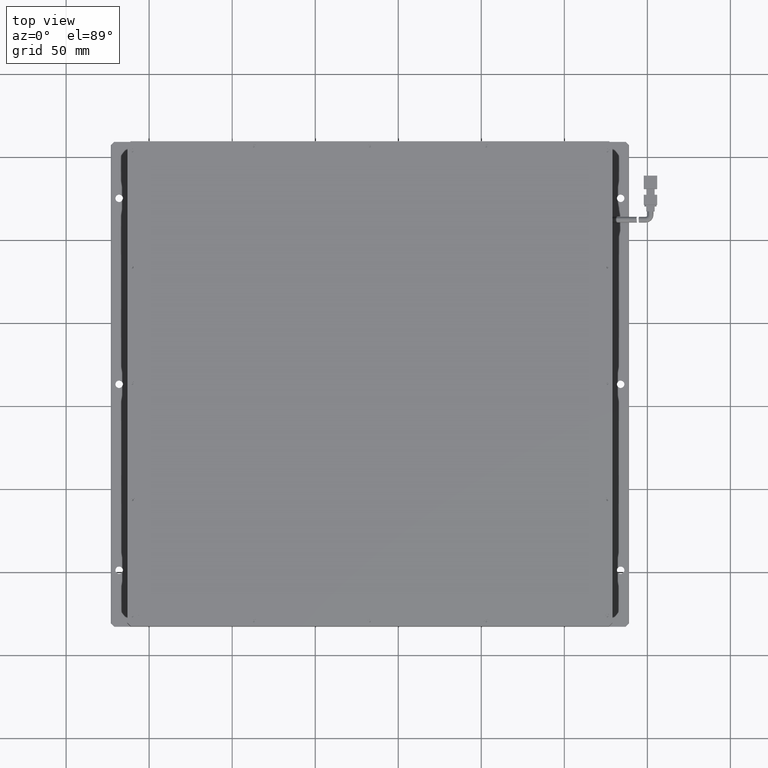
[diagram: clean part render]
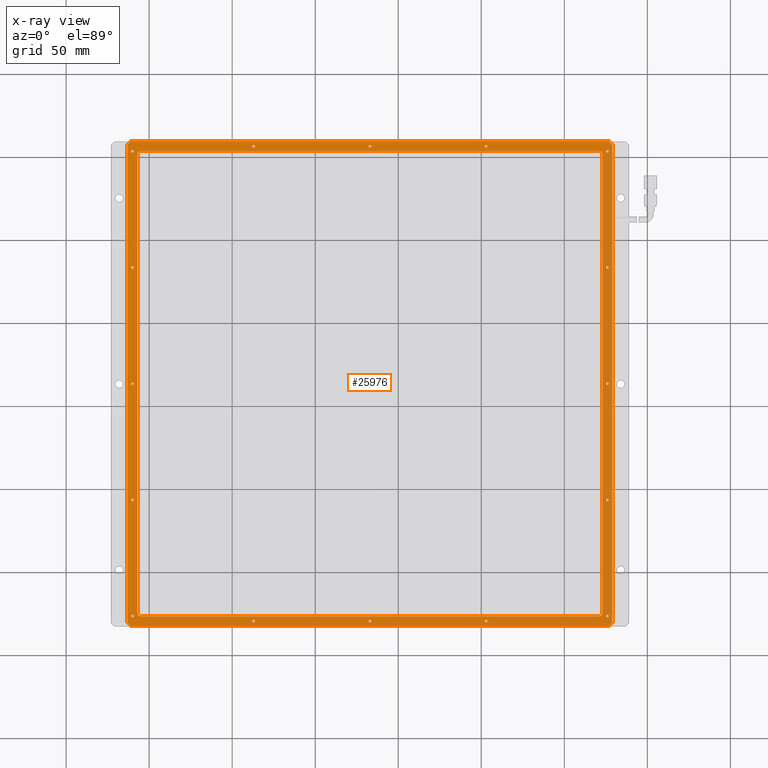
[diagram: x-ray — body ghosted, one internal face saturated and labeled with its STEP entity id]
A machine part, top view, then the same camera in x-ray: the body is ghosted and one INTERNAL B-rep face — a face not visible from any outside direction — is saturated and labeled: STEP entity #25976.
In plain terms, the highlighted planar face has unit normal (0, 0, 1).
Its self-contained STEP definition (entity closure, byte-faithful):
#35 = CIRCLE ( 'NONE', #15958, 2.000000000000001800 ) ;
#99 = EDGE_CURVE ( 'NONE', #20688, #16552, #9622, .T. ) ;
#194 = LINE ( 'NONE', #6214, #22301 ) ;
#198 = VERTEX_POINT ( 'NONE', #16318 ) ;
#206 = CARTESIAN_POINT ( 'NONE',  ( -36.28067712634185000, 156.2698045692266600, 8.499999999971805700 ) ) ;
#229 = ORIENTED_EDGE ( 'NONE', *, *, #7135, .T. ) ;
#239 = FACE_BOUND ( 'NONE', #13345, .T. ) ;
#343 = ORIENTED_EDGE ( 'NONE', *, *, #12311, .T. ) ;
#371 = CARTESIAN_POINT ( 'NONE',  ( 176.9193228736581900, 159.2698045692267500, 8.499999999971805700 ) ) ;
#461 = EDGE_CURVE ( 'NONE', #10939, #19899, #12626, .T. ) ;
#503 = CARTESIAN_POINT ( 'NONE',  ( 33.71932287365817200, -129.7301954307733600, 8.499999999971805700 ) ) ;
#519 = VERTEX_POINT ( 'NONE', #5657 ) ;
#680 = DIRECTION ( 'NONE',  ( 0.0000000000000000000, 0.0000000000000000000, -1.000000000000000000 ) ) ;
#746 = VERTEX_POINT ( 'NONE', #5902 ) ;
#811 = AXIS2_PLACEMENT_3D ( 'NONE', #19348, #6439, #21475 ) ;
#837 = ORIENTED_EDGE ( 'NONE', *, *, #6376, .T. ) ;
#1067 = EDGE_CURVE ( 'NONE', #4375, #22810, #8130, .T. ) ;
#1086 = DIRECTION ( 'NONE',  ( -1.000000000000000000, -0.0000000000000000000, 0.0000000000000000000 ) ) ;
#1099 = CIRCLE ( 'NONE', #14546, 0.7999999999999951600 ) ;
#1219 = EDGE_CURVE ( 'NONE', #18648, #27676, #25795, .T. ) ;
#1255 = VECTOR ( 'NONE', #27238, 999.9999999999998900 ) ;
#1257 = VERTEX_POINT ( 'NONE', #12246 ) ;
#1283 = ORIENTED_EDGE ( 'NONE', *, *, #16943, .T. ) ;
#1310 = ORIENTED_EDGE ( 'NONE', *, *, #2662, .T. ) ;
#1330 = EDGE_LOOP ( 'NONE', ( #14209, #10317 ) ) ;
#1512 = VERTEX_POINT ( 'NONE', #2260 ) ;
#1542 = DIRECTION ( 'NONE',  ( 1.000000000000000000, 0.0000000000000000000, 0.0000000000000000000 ) ) ;
#1633 = CARTESIAN_POINT ( 'NONE',  ( 176.7193228736582000, 83.26980456922672100, 8.499999999971805700 ) ) ;
#1838 = VERTEX_POINT ( 'NONE', #14504 ) ;
#1864 = VERTEX_POINT ( 'NONE', #20391 ) ;
#1944 = EDGE_CURVE ( 'NONE', #1864, #19283, #6949, .T. ) ;
#2120 = DIRECTION ( 'NONE',  ( 0.0000000000000000000, -0.0000000000000000000, -1.000000000000000000 ) ) ;
#2141 = LINE ( 'NONE', #27137, #7763 ) ;
#2210 = AXIS2_PLACEMENT_3D ( 'NONE', #8985, #24039, #11151 ) ;
#2232 = CARTESIAN_POINT ( 'NONE',  ( 175.1193228736581800, 83.26980456922672100, 8.499999999971805700 ) ) ;
#2260 = CARTESIAN_POINT ( 'NONE',  ( 176.7193228736582000, 153.2698045692266600, 8.499999999971805700 ) ) ;
#2270 = CARTESIAN_POINT ( 'NONE',  ( 176.7193228736582000, -56.73019543077334200, 8.499999999971805700 ) ) ;
#2281 = ORIENTED_EDGE ( 'NONE', *, *, #13471, .T. ) ;
#2322 = EDGE_LOOP ( 'NONE', ( #8607, #11521 ) ) ;
#2403 = EDGE_LOOP ( 'NONE', ( #4746, #1310 ) ) ;
#2507 = CIRCLE ( 'NONE', #26824, 2.000000000000001800 ) ;
#2570 = VERTEX_POINT ( 'NONE', #13835 ) ;
#2662 = EDGE_CURVE ( 'NONE', #23313, #11496, #5286, .T. ) ;
#2721 = CARTESIAN_POINT ( 'NONE',  ( -113.0806771263418400, -132.7301954307733600, 8.499999999971805700 ) ) ;
#2803 = LINE ( 'NONE', #12750, #24230 ) ;
#2947 = CIRCLE ( 'NONE', #7831, 0.7999999999999951600 ) ;
#3008 = CARTESIAN_POINT ( 'NONE',  ( 176.9193228736579000, -132.7301954307733900, 8.499999999971805700 ) ) ;
#3083 = ORIENTED_EDGE ( 'NONE', *, *, #16776, .T. ) ;
#3120 = AXIS2_PLACEMENT_3D ( 'NONE', #13495, #680, #15613 ) ;
#3248 = FACE_OUTER_BOUND ( 'NONE', #21785, .T. ) ;
#3282 = CARTESIAN_POINT ( 'NONE',  ( 102.1193228736582500, -129.7301954307733600, 8.499999999971805700 ) ) ;
#3304 = EDGE_CURVE ( 'NONE', #16552, #20688, #5232, .T. ) ;
#3326 = VERTEX_POINT ( 'NONE', #7360 ) ;
#3347 = CARTESIAN_POINT ( 'NONE',  ( 172.9193228736581300, -132.7301954307733600, 8.499999999971805700 ) ) ;
#3372 = DIRECTION ( 'NONE',  ( 0.0000000000000000000, 0.0000000000000000000, -1.000000000000000000 ) ) ;
#3374 = ORIENTED_EDGE ( 'NONE', *, *, #25211, .T. ) ;
#3420 = CARTESIAN_POINT ( 'NONE',  ( 178.9193228736582500, 157.2698045692267200, 8.499999999971805700 ) ) ;
#3459 = CIRCLE ( 'NONE', #11461, 0.8000000000000229200 ) ;
#3625 = EDGE_CURVE ( 'NONE', #5513, #25596, #20301, .T. ) ;
#3680 = EDGE_LOOP ( 'NONE', ( #7997, #5341 ) ) ;
#3683 = CIRCLE ( 'NONE', #3120, 0.7999999999999951600 ) ;
#3685 = AXIS2_PLACEMENT_3D ( 'NONE', #16162, #3372, #18343 ) ;
#3788 = AXIS2_PLACEMENT_3D ( 'NONE', #12366, #27383, #14536 ) ;
#3848 = CARTESIAN_POINT ( 'NONE',  ( -37.88067712634184400, 156.2698045692266600, 8.499999999971805700 ) ) ;
#3869 = VERTEX_POINT ( 'NONE', #14382 ) ;
#3896 = FACE_BOUND ( 'NONE', #15116, .T. ) ;
#3960 = CARTESIAN_POINT ( 'NONE',  ( -110.8806771263418400, 153.2698045692266600, 8.499999999971805700 ) ) ;
#4088 = AXIS2_PLACEMENT_3D ( 'NONE', #18549, #18649, #18468 ) ;
#4165 = EDGE_CURVE ( 'NONE', #8280, #10939, #194, .T. ) ;
#4246 = EDGE_CURVE ( 'NONE', #4530, #2570, #25302, .T. ) ;
#4375 = VERTEX_POINT ( 'NONE', #27357 ) ;
#4384 = CIRCLE ( 'NONE', #16209, 0.7999999999999951600 ) ;
#4398 = DIRECTION ( 'NONE',  ( 0.0000000000000000000, 0.0000000000000000000, -1.000000000000000000 ) ) ;
#4508 = DIRECTION ( 'NONE',  ( 0.0000000000000000000, -1.000000000000000000, -0.0000000000000000000 ) ) ;
#4529 = ORIENTED_EDGE ( 'NONE', *, *, #21249, .T. ) ;
#4530 = VERTEX_POINT ( 'NONE', #10231 ) ;
#4564 = FACE_BOUND ( 'NONE', #4991, .T. ) ;
#4608 = EDGE_LOOP ( 'NONE', ( #22335, #22949 ) ) ;
#4746 = ORIENTED_EDGE ( 'NONE', *, *, #19923, .T. ) ;
#4906 = CARTESIAN_POINT ( 'NONE',  ( -110.8806771263418400, 13.26980456922666100, 8.499999999971805700 ) ) ;
#4991 = EDGE_LOOP ( 'NONE', ( #12005, #11273 ) ) ;
#5031 = EDGE_CURVE ( 'NONE', #19899, #746, #13129, .T. ) ;
#5073 = CARTESIAN_POINT ( 'NONE',  ( -113.0806771263418400, -132.7301954307733600, 8.499999999971805700 ) ) ;
#5135 = ORIENTED_EDGE ( 'NONE', *, *, #14575, .T. ) ;
#5156 = CARTESIAN_POINT ( 'NONE',  ( -37.08067712634184700, 156.2698045692266600, 8.499999999971805700 ) ) ;
#5216 = FACE_BOUND ( 'NONE', #2322, .T. ) ;
#5229 = CIRCLE ( 'NONE', #2210, 0.7999999999999951600 ) ;
#5232 = CIRCLE ( 'NONE', #11399, 0.7999999999999951600 ) ;
#5246 = CIRCLE ( 'NONE', #22466, 0.7999999999999951600 ) ;
#5286 = CIRCLE ( 'NONE', #5796, 0.7999999999999951600 ) ;
#5341 = ORIENTED_EDGE ( 'NONE', *, *, #9705, .T. ) ;
#5343 = EDGE_LOOP ( 'NONE', ( #12941, #22900 ) ) ;
#5449 = LINE ( 'NONE', #16401, #10464 ) ;
#5513 = VERTEX_POINT ( 'NONE', #4906 ) ;
#5619 = ORIENTED_EDGE ( 'NONE', *, *, #3625, .T. ) ;
#5641 = ORIENTED_EDGE ( 'NONE', *, *, #10057, .T. ) ;
#5657 = CARTESIAN_POINT ( 'NONE',  ( 32.11932287365817700, -129.7301954307733600, 8.499999999971805700 ) ) ;
#5796 = AXIS2_PLACEMENT_3D ( 'NONE', #24490, #24292, #24117 ) ;
#5835 = VERTEX_POINT ( 'NONE', #3420 ) ;
#5889 = CIRCLE ( 'NONE', #15281, 0.8000000000000229200 ) ;
#5902 = CARTESIAN_POINT ( 'NONE',  ( -107.0806771263419000, 151.2698045692266100, 8.499999999971805700 ) ) ;
#6117 = DIRECTION ( 'NONE',  ( -1.000000000000000000, -0.0000000000000000000, 0.0000000000000000000 ) ) ;
#6166 = EDGE_CURVE ( 'NONE', #24598, #21654, #9711, .T. ) ;
#6184 = CARTESIAN_POINT ( 'NONE',  ( -110.0806771263418400, 153.2698045692266600, 8.499999999971805700 ) ) ;
#6214 = CARTESIAN_POINT ( 'NONE',  ( -113.0806771263418400, -126.7301954307734100, 8.499999999971805700 ) ) ;
#6376 = EDGE_CURVE ( 'NONE', #2570, #8280, #35, .T. ) ;
#6439 = DIRECTION ( 'NONE',  ( 0.0000000000000000000, 0.0000000000000000000, -1.000000000000000000 ) ) ;
#6444 = AXIS2_PLACEMENT_3D ( 'NONE', #12437, #27454, #14601 ) ;
#6495 = CIRCLE ( 'NONE', #811, 0.7999999999999951600 ) ;
#6759 = ORIENTED_EDGE ( 'NONE', *, *, #27664, .T. ) ;
#6866 = CARTESIAN_POINT ( 'NONE',  ( -37.88067712634184400, -129.7301954307733600, 8.499999999971805700 ) ) ;
#6918 = EDGE_CURVE ( 'NONE', #14612, #27079, #12319, .T. ) ;
#6949 = CIRCLE ( 'NONE', #21950, 0.8000000000000229200 ) ;
#7135 = EDGE_CURVE ( 'NONE', #22810, #4375, #5229, .T. ) ;
#7202 = DIRECTION ( 'NONE',  ( 1.000000000000000000, 0.0000000000000000000, -0.0000000000000000000 ) ) ;
#7278 = LINE ( 'NONE', #13899, #23753 ) ;
#7282 = DIRECTION ( 'NONE',  ( 1.000000000000000000, 0.0000000000000000000, 0.0000000000000000000 ) ) ;
#7318 = CARTESIAN_POINT ( 'NONE',  ( -110.0806771263418400, 13.26980456922666100, 8.499999999971805700 ) ) ;
#7360 = CARTESIAN_POINT ( 'NONE',  ( 170.9193228736581300, 153.2698045692266100, 8.499999999971805700 ) ) ;
#7427 = AXIS2_PLACEMENT_3D ( 'NONE', #24189, #24154, #24127 ) ;
#7428 = LINE ( 'NONE', #20381, #12514 ) ;
#7447 = CARTESIAN_POINT ( 'NONE',  ( 176.9193228736579000, -132.7301954307733900, 8.499999999971805700 ) ) ;
#7498 = DIRECTION ( 'NONE',  ( -0.0000000000000000000, 1.000000000000000000, 0.0000000000000000000 ) ) ;
#7501 = AXIS2_PLACEMENT_3D ( 'NONE', #9767, #9685, #9601 ) ;
#7582 = ORIENTED_EDGE ( 'NONE', *, *, #11755, .T. ) ;
#7623 = AXIS2_PLACEMENT_3D ( 'NONE', #26519, #26579, #26638 ) ;
#7650 = ORIENTED_EDGE ( 'NONE', *, *, #1067, .T. ) ;
#7699 = CARTESIAN_POINT ( 'NONE',  ( -105.0806771263419000, -126.7301954307734100, 8.499999999971805700 ) ) ;
#7763 = VECTOR ( 'NONE', #12119, 999.9999999999998900 ) ;
#7823 = ORIENTED_EDGE ( 'NONE', *, *, #5031, .T. ) ;
#7831 = AXIS2_PLACEMENT_3D ( 'NONE', #9091, #24158, #11281 ) ;
#7838 = VERTEX_POINT ( 'NONE', #503 ) ;
#7904 = CARTESIAN_POINT ( 'NONE',  ( -109.2806771263418400, 153.2698045692266600, 8.499999999971805700 ) ) ;
#7963 = DIRECTION ( 'NONE',  ( 0.0000000000000000000, 0.0000000000000000000, -1.000000000000000000 ) ) ;
#7985 = DIRECTION ( 'NONE',  ( 0.0000000000000000000, 0.0000000000000000000, -1.000000000000000000 ) ) ;
#7997 = ORIENTED_EDGE ( 'NONE', *, *, #25713, .T. ) ;
#8007 = DIRECTION ( 'NONE',  ( 1.000000000000000000, 0.0000000000000000000, -0.0000000000000000000 ) ) ;
#8029 = VECTOR ( 'NONE', #13138, 1000.000000000000000 ) ;
#8066 = EDGE_CURVE ( 'NONE', #3326, #4530, #2507, .T. ) ;
#8112 = ORIENTED_EDGE ( 'NONE', *, *, #19430, .T. ) ;
#8130 = CIRCLE ( 'NONE', #4088, 0.7999999999999951600 ) ;
#8153 = VERTEX_POINT ( 'NONE', #18858 ) ;
#8213 = CARTESIAN_POINT ( 'NONE',  ( -110.0806771263418400, -126.7301954307733500, 8.499999999971805700 ) ) ;
#8217 = EDGE_CURVE ( 'NONE', #14096, #12594, #2803, .T. ) ;
#8280 = VERTEX_POINT ( 'NONE', #8540 ) ;
#8326 = DIRECTION ( 'NONE',  ( 1.000000000000000000, 0.0000000000000000000, 0.0000000000000000000 ) ) ;
#8409 = VERTEX_POINT ( 'NONE', #6866 ) ;
#8410 = VERTEX_POINT ( 'NONE', #24064 ) ;
#8540 = CARTESIAN_POINT ( 'NONE',  ( 170.9193228736581300, -126.7301954307734100, 8.499999999971805700 ) ) ;
#8607 = ORIENTED_EDGE ( 'NONE', *, *, #16425, .T. ) ;
#8682 = CARTESIAN_POINT ( 'NONE',  ( 32.91932287365817400, -129.7301954307733600, 8.499999999971805700 ) ) ;
#8858 = FACE_BOUND ( 'NONE', #21087, .T. ) ;
#8985 = CARTESIAN_POINT ( 'NONE',  ( -110.0806771263418400, -56.73019543077334200, 8.499999999971805700 ) ) ;
#8995 = EDGE_CURVE ( 'NONE', #9616, #8410, #10677, .T. ) ;
#9091 = CARTESIAN_POINT ( 'NONE',  ( 32.91932287365817400, 156.2698045692266600, 8.499999999971805700 ) ) ;
#9123 = ORIENTED_EDGE ( 'NONE', *, *, #21243, .T. ) ;
#9262 = ORIENTED_EDGE ( 'NONE', *, *, #18738, .T. ) ;
#9336 = EDGE_LOOP ( 'NONE', ( #15970, #19772 ) ) ;
#9384 = DIRECTION ( 'NONE',  ( 1.000000000000000000, 0.0000000000000000000, 0.0000000000000000000 ) ) ;
#9460 = DIRECTION ( 'NONE',  ( 1.000000000000000000, 0.0000000000000000000, 0.0000000000000000000 ) ) ;
#9548 = FACE_BOUND ( 'NONE', #13781, .T. ) ;
#9550 = CARTESIAN_POINT ( 'NONE',  ( -111.0806771263418400, -132.7301954307733600, 8.499999999971805700 ) ) ;
#9601 = DIRECTION ( 'NONE',  ( 1.000000000000000000, 0.0000000000000000000, 0.0000000000000000000 ) ) ;
#9609 = DIRECTION ( 'NONE',  ( 0.0000000000000000000, 0.0000000000000000000, -1.000000000000000000 ) ) ;
#9616 = VERTEX_POINT ( 'NONE', #3008 ) ;
#9622 = CIRCLE ( 'NONE', #21285, 0.7999999999999951600 ) ;
#9633 = DIRECTION ( 'NONE',  ( 0.0000000000000000000, 0.0000000000000000000, -1.000000000000000000 ) ) ;
#9685 = DIRECTION ( 'NONE',  ( 0.0000000000000000000, 0.0000000000000000000, -1.000000000000000000 ) ) ;
#9705 = EDGE_CURVE ( 'NONE', #24246, #10514, #27754, .T. ) ;
#9711 = CIRCLE ( 'NONE', #20958, 0.7999999999999951600 ) ;
#9767 = CARTESIAN_POINT ( 'NONE',  ( 102.9193228736582300, 156.2698045692266600, 8.499999999971805700 ) ) ;
#10057 = EDGE_CURVE ( 'NONE', #746, #19953, #15289, .T. ) ;
#10166 = CARTESIAN_POINT ( 'NONE',  ( 175.9193228736581900, 153.2698045692266600, 8.499999999971805700 ) ) ;
#10182 = ORIENTED_EDGE ( 'NONE', *, *, #26656, .T. ) ;
#10216 = FACE_BOUND ( 'NONE', #2403, .T. ) ;
#10218 = AXIS2_PLACEMENT_3D ( 'NONE', #20873, #7985, #23013 ) ;
#10231 = CARTESIAN_POINT ( 'NONE',  ( 172.9193228736581300, 151.2698045692266100, 8.499999999971805700 ) ) ;
#10288 = CARTESIAN_POINT ( 'NONE',  ( 102.9193228736582300, -129.7301954307733600, 8.499999999971805700 ) ) ;
#10317 = ORIENTED_EDGE ( 'NONE', *, *, #3304, .T. ) ;
#10388 = CARTESIAN_POINT ( 'NONE',  ( -110.8806771263418400, -56.73019543077334200, 8.499999999971805700 ) ) ;
#10390 = DIRECTION ( 'NONE',  ( 1.000000000000000000, 0.0000000000000000000, 0.0000000000000000000 ) ) ;
#10464 = VECTOR ( 'NONE', #18556, 1000.000000000000000 ) ;
#10514 = VERTEX_POINT ( 'NONE', #1633 ) ;
#10677 = LINE ( 'NONE', #7447, #27156 ) ;
#10852 = DIRECTION ( 'NONE',  ( 1.000000000000000000, 0.0000000000000000000, 0.0000000000000000000 ) ) ;
#10898 = FACE_BOUND ( 'NONE', #1330, .T. ) ;
#10934 = CARTESIAN_POINT ( 'NONE',  ( -107.0806771263419000, -132.7301954307733600, 8.499999999971805700 ) ) ;
#10939 = VERTEX_POINT ( 'NONE', #7699 ) ;
#10951 = ORIENTED_EDGE ( 'NONE', *, *, #20424, .T. ) ;
#11071 = CIRCLE ( 'NONE', #11294, 0.7999999999999951600 ) ;
#11151 = DIRECTION ( 'NONE',  ( 1.000000000000000000, 0.0000000000000000000, 0.0000000000000000000 ) ) ;
#11273 = ORIENTED_EDGE ( 'NONE', *, *, #11922, .T. ) ;
#11281 = DIRECTION ( 'NONE',  ( 1.000000000000000000, 0.0000000000000000000, 0.0000000000000000000 ) ) ;
#11294 = AXIS2_PLACEMENT_3D ( 'NONE', #7318, #22361, #9460 ) ;
#11331 = EDGE_CURVE ( 'NONE', #1512, #8153, #23984, .T. ) ;
#11399 = AXIS2_PLACEMENT_3D ( 'NONE', #10288, #9609, #9384 ) ;
#11426 = DIRECTION ( 'NONE',  ( 0.0000000000000000000, 0.0000000000000000000, -1.000000000000000000 ) ) ;
#11441 = DIRECTION ( 'NONE',  ( 1.000000000000000000, 0.0000000000000000000, 0.0000000000000000000 ) ) ;
#11461 = AXIS2_PLACEMENT_3D ( 'NONE', #12354, #27374, #14525 ) ;
#11496 = VERTEX_POINT ( 'NONE', #206 ) ;
#11515 = CARTESIAN_POINT ( 'NONE',  ( -107.0806771263419000, -124.7301954307734100, 8.499999999971805700 ) ) ;
#11521 = ORIENTED_EDGE ( 'NONE', *, *, #6918, .T. ) ;
#11579 = EDGE_LOOP ( 'NONE', ( #6759, #2281 ) ) ;
#11693 = ORIENTED_EDGE ( 'NONE', *, *, #8217, .T. ) ;
#11755 = EDGE_CURVE ( 'NONE', #5835, #22295, #5449, .T. ) ;
#11803 = CARTESIAN_POINT ( 'NONE',  ( -110.8806771263418400, -126.7301954307733500, 8.499999999971805700 ) ) ;
#11834 = CIRCLE ( 'NONE', #10218, 0.8000000000000229200 ) ;
#11843 = ORIENTED_EDGE ( 'NONE', *, *, #27395, .T. ) ;
#11922 = EDGE_CURVE ( 'NONE', #8153, #1512, #13185, .T. ) ;
#12005 = ORIENTED_EDGE ( 'NONE', *, *, #11331, .T. ) ;
#12119 = DIRECTION ( 'NONE',  ( -0.7071067811865486800, -0.7071067811865464600, 0.0000000000000000000 ) ) ;
#12246 = CARTESIAN_POINT ( 'NONE',  ( -110.8806771263418400, 83.26980456922672100, 8.499999999971805700 ) ) ;
#12295 = VECTOR ( 'NONE', #15501, 1000.000000000000000 ) ;
#12311 = EDGE_CURVE ( 'NONE', #8410, #5835, #7428, .T. ) ;
#12319 = CIRCLE ( 'NONE', #7501, 0.7999999999999951600 ) ;
#12322 = DIRECTION ( 'NONE',  ( 0.0000000000000000000, 0.0000000000000000000, -1.000000000000000000 ) ) ;
#12332 = DIRECTION ( 'NONE',  ( 0.0000000000000000000, 0.0000000000000000000, -1.000000000000000000 ) ) ;
#12341 = DIRECTION ( 'NONE',  ( 1.000000000000000000, 0.0000000000000000000, 0.0000000000000000000 ) ) ;
#12354 = CARTESIAN_POINT ( 'NONE',  ( 175.9193228736581900, 13.26980456922666100, 8.499999999971805700 ) ) ;
#12360 = CARTESIAN_POINT ( 'NONE',  ( 103.7193228736582300, -129.7301954307733600, 8.499999999971805700 ) ) ;
#12366 = CARTESIAN_POINT ( 'NONE',  ( -110.0806771263418400, 153.2698045692266600, 8.499999999971805700 ) ) ;
#12381 = DIRECTION ( 'NONE',  ( 1.000000000000000000, 0.0000000000000000000, 0.0000000000000000000 ) ) ;
#12417 = ORIENTED_EDGE ( 'NONE', *, *, #461, .T. ) ;
#12437 = CARTESIAN_POINT ( 'NONE',  ( -110.0806771263418400, -126.7301954307733500, 8.499999999971805700 ) ) ;
#12514 = VECTOR ( 'NONE', #7498, 1000.000000000000000 ) ;
#12518 = CARTESIAN_POINT ( 'NONE',  ( 175.9193228736581900, -56.73019543077334200, 8.499999999971805700 ) ) ;
#12594 = VERTEX_POINT ( 'NONE', #21740 ) ;
#12599 = CIRCLE ( 'NONE', #17075, 0.7999999999999951600 ) ;
#12626 = CIRCLE ( 'NONE', #7623, 2.000000000000001800 ) ;
#12635 = ORIENTED_EDGE ( 'NONE', *, *, #1219, .T. ) ;
#12666 = AXIS2_PLACEMENT_3D ( 'NONE', #14937, #2120, #17101 ) ;
#12708 = CARTESIAN_POINT ( 'NONE',  ( -37.08067712634184700, -129.7301954307733600, 8.499999999971805700 ) ) ;
#12736 = CARTESIAN_POINT ( 'NONE',  ( 175.9193228736581900, 153.2698045692266600, 8.499999999971805700 ) ) ;
#12750 = CARTESIAN_POINT ( 'NONE',  ( -113.0806771263418400, -132.7301954307733600, 8.499999999971805700 ) ) ;
#12941 = ORIENTED_EDGE ( 'NONE', *, *, #15719, .T. ) ;
#13016 = DIRECTION ( 'NONE',  ( 1.000000000000000000, 0.0000000000000000000, 0.0000000000000000000 ) ) ;
#13105 = DIRECTION ( 'NONE',  ( 0.0000000000000000000, 0.0000000000000000000, -1.000000000000000000 ) ) ;
#13129 = LINE ( 'NONE', #10934, #8029 ) ;
#13136 = CARTESIAN_POINT ( 'NONE',  ( 175.9193228736581900, -126.7301954307733500, 8.499999999971805700 ) ) ;
#13138 = DIRECTION ( 'NONE',  ( -0.0000000000000000000, 1.000000000000000000, 0.0000000000000000000 ) ) ;
#13185 = CIRCLE ( 'NONE', #24917, 0.8000000000000229200 ) ;
#13208 = ORIENTED_EDGE ( 'NONE', *, *, #4246, .T. ) ;
#13345 = EDGE_LOOP ( 'NONE', ( #19472, #19965 ) ) ;
#13390 = EDGE_CURVE ( 'NONE', #19283, #1864, #5889, .T. ) ;
#13471 = EDGE_CURVE ( 'NONE', #8409, #24911, #5246, .T. ) ;
#13495 = CARTESIAN_POINT ( 'NONE',  ( 102.9193228736582300, 156.2698045692266600, 8.499999999971805700 ) ) ;
#13618 = CARTESIAN_POINT ( 'NONE',  ( -109.2806771263418400, 83.26980456922672100, 8.499999999971805700 ) ) ;
#13642 = CARTESIAN_POINT ( 'NONE',  ( 175.1193228736581800, -126.7301954307733500, 8.499999999971805700 ) ) ;
#13781 = EDGE_LOOP ( 'NONE', ( #10182, #12635 ) ) ;
#13835 = CARTESIAN_POINT ( 'NONE',  ( 172.9193228736581300, -124.7301954307734100, 8.499999999971805700 ) ) ;
#13899 = CARTESIAN_POINT ( 'NONE',  ( -113.0806771263418400, 159.2698045692266900, 8.499999999971805700 ) ) ;
#13941 = DIRECTION ( 'NONE',  ( 0.0000000000000000000, 0.0000000000000000000, -1.000000000000000000 ) ) ;
#13970 = CARTESIAN_POINT ( 'NONE',  ( 175.9193228736581900, -56.73019543077334200, 8.499999999971805700 ) ) ;
#14017 = CARTESIAN_POINT ( 'NONE',  ( -109.2806771263418400, -126.7301954307733500, 8.499999999971805700 ) ) ;
#14096 = VERTEX_POINT ( 'NONE', #25450 ) ;
#14209 = ORIENTED_EDGE ( 'NONE', *, *, #99, .T. ) ;
#14364 = DIRECTION ( 'NONE',  ( -0.0000000000000000000, -0.0000000000000000000, -1.000000000000000000 ) ) ;
#14382 = CARTESIAN_POINT ( 'NONE',  ( -111.0806771263418400, 159.2698045692267500, 8.499999999971805700 ) ) ;
#14396 = CARTESIAN_POINT ( 'NONE',  ( 102.1193228736582500, 156.2698045692266600, 8.499999999971805700 ) ) ;
#14504 = CARTESIAN_POINT ( 'NONE',  ( 176.7193228736582000, 13.26980456922666100, 8.499999999971805700 ) ) ;
#14525 = DIRECTION ( 'NONE',  ( 1.000000000000000000, 0.0000000000000000000, 0.0000000000000000000 ) ) ;
#14536 = DIRECTION ( 'NONE',  ( 1.000000000000000000, 0.0000000000000000000, 0.0000000000000000000 ) ) ;
#14546 = AXIS2_PLACEMENT_3D ( 'NONE', #22521, #9633, #24677 ) ;
#14575 = EDGE_CURVE ( 'NONE', #3869, #14096, #2141, .T. ) ;
#14601 = DIRECTION ( 'NONE',  ( 1.000000000000000000, 0.0000000000000000000, 0.0000000000000000000 ) ) ;
#14612 = VERTEX_POINT ( 'NONE', #14396 ) ;
#14641 = FACE_BOUND ( 'NONE', #17792, .T. ) ;
#14691 = DIRECTION ( 'NONE',  ( 1.000000000000000000, 0.0000000000000000000, 0.0000000000000000000 ) ) ;
#14781 = CIRCLE ( 'NONE', #3788, 0.7999999999999951600 ) ;
#14871 = DIRECTION ( 'NONE',  ( 1.000000000000000000, 0.0000000000000000000, 0.0000000000000000000 ) ) ;
#14896 = DIRECTION ( 'NONE',  ( 1.000000000000000000, 0.0000000000000000000, 0.0000000000000000000 ) ) ;
#14905 = DIRECTION ( 'NONE',  ( 0.0000000000000000000, -1.000000000000000000, -0.0000000000000000000 ) ) ;
#14937 = CARTESIAN_POINT ( 'NONE',  ( -105.0806771263419000, 151.2698045692266100, 8.499999999971805700 ) ) ;
#14981 = VERTEX_POINT ( 'NONE', #13618 ) ;
#15116 = EDGE_LOOP ( 'NONE', ( #27639, #3083 ) ) ;
#15126 = CARTESIAN_POINT ( 'NONE',  ( 32.91932287365817400, 156.2698045692266600, 8.499999999971805700 ) ) ;
#15249 = VERTEX_POINT ( 'NONE', #3960 ) ;
#15281 = AXIS2_PLACEMENT_3D ( 'NONE', #12518, #27539, #14691 ) ;
#15289 = CIRCLE ( 'NONE', #12666, 2.000000000000001800 ) ;
#15301 = FACE_BOUND ( 'NONE', #9336, .T. ) ;
#15501 = DIRECTION ( 'NONE',  ( 1.000000000000000000, 0.0000000000000000000, -0.0000000000000000000 ) ) ;
#15613 = DIRECTION ( 'NONE',  ( 1.000000000000000000, 0.0000000000000000000, 0.0000000000000000000 ) ) ;
#15707 = EDGE_CURVE ( 'NONE', #20653, #15249, #14781, .T. ) ;
#15719 = EDGE_CURVE ( 'NONE', #1838, #198, #20114, .T. ) ;
#15752 = EDGE_LOOP ( 'NONE', ( #4529, #9262 ) ) ;
#15956 = FACE_BOUND ( 'NONE', #4608, .T. ) ;
#15958 = AXIS2_PLACEMENT_3D ( 'NONE', #21186, #19951, #19864 ) ;
#15970 = ORIENTED_EDGE ( 'NONE', *, *, #13390, .T. ) ;
#16162 = CARTESIAN_POINT ( 'NONE',  ( 175.9193228736581900, 83.26980456922672100, 8.499999999971805700 ) ) ;
#16209 = AXIS2_PLACEMENT_3D ( 'NONE', #8682, #23732, #10852 ) ;
#16237 = EDGE_CURVE ( 'NONE', #23126, #23120, #24767, .T. ) ;
#16318 = CARTESIAN_POINT ( 'NONE',  ( 175.1193228736581800, 13.26980456922666100, 8.499999999971805700 ) ) ;
#16401 = CARTESIAN_POINT ( 'NONE',  ( 178.9193228736581900, 157.2698045692267200, 8.499999999971805700 ) ) ;
#16425 = EDGE_CURVE ( 'NONE', #27079, #14612, #3683, .T. ) ;
#16552 = VERTEX_POINT ( 'NONE', #3282 ) ;
#16643 = FACE_BOUND ( 'NONE', #11579, .T. ) ;
#16767 = AXIS2_PLACEMENT_3D ( 'NONE', #8213, #23255, #10390 ) ;
#16776 = EDGE_CURVE ( 'NONE', #15249, #20653, #17720, .T. ) ;
#16943 = EDGE_CURVE ( 'NONE', #17108, #9616, #18007, .T. ) ;
#17053 = VECTOR ( 'NONE', #8007, 1000.000000000000000 ) ;
#17075 = AXIS2_PLACEMENT_3D ( 'NONE', #20855, #7963, #22989 ) ;
#17101 = DIRECTION ( 'NONE',  ( 1.000000000000000000, 0.0000000000000000000, 0.0000000000000000000 ) ) ;
#17108 = VERTEX_POINT ( 'NONE', #9550 ) ;
#17231 = CARTESIAN_POINT ( 'NONE',  ( 175.9193228736581900, 13.26980456922666100, 8.499999999971805700 ) ) ;
#17341 = EDGE_CURVE ( 'NONE', #7838, #519, #6495, .T. ) ;
#17391 = EDGE_LOOP ( 'NONE', ( #8112, #5619 ) ) ;
#17412 = CIRCLE ( 'NONE', #20679, 0.7999999999999951600 ) ;
#17480 = CIRCLE ( 'NONE', #16767, 0.7999999999999951600 ) ;
#17720 = CIRCLE ( 'NONE', #19271, 0.7999999999999951600 ) ;
#17792 = EDGE_LOOP ( 'NONE', ( #7650, #229 ) ) ;
#17833 = CARTESIAN_POINT ( 'NONE',  ( 176.7193228736582000, -126.7301954307733500, 8.499999999971805700 ) ) ;
#18007 = LINE ( 'NONE', #2721, #12295 ) ;
#18306 = LINE ( 'NONE', #20763, #1255 ) ;
#18325 = ORIENTED_EDGE ( 'NONE', *, *, #16237, .T. ) ;
#18343 = DIRECTION ( 'NONE',  ( 1.000000000000000000, 0.0000000000000000000, 0.0000000000000000000 ) ) ;
#18468 = DIRECTION ( 'NONE',  ( 1.000000000000000000, 0.0000000000000000000, 0.0000000000000000000 ) ) ;
#18549 = CARTESIAN_POINT ( 'NONE',  ( -110.0806771263418400, -56.73019543077334200, 8.499999999971805700 ) ) ;
#18556 = DIRECTION ( 'NONE',  ( -0.7071067811865573400, 0.7071067811865378000, 0.0000000000000000000 ) ) ;
#18571 = AXIS2_PLACEMENT_3D ( 'NONE', #24287, #11426, #26446 ) ;
#18648 = VERTEX_POINT ( 'NONE', #13642 ) ;
#18649 = DIRECTION ( 'NONE',  ( 0.0000000000000000000, 0.0000000000000000000, -1.000000000000000000 ) ) ;
#18738 = EDGE_CURVE ( 'NONE', #1257, #14981, #1099, .T. ) ;
#18858 = CARTESIAN_POINT ( 'NONE',  ( 175.1193228736581800, 153.2698045692266600, 8.499999999971805700 ) ) ;
#19099 = EDGE_CURVE ( 'NONE', #198, #1838, #3459, .T. ) ;
#19271 = AXIS2_PLACEMENT_3D ( 'NONE', #6184, #21221, #8326 ) ;
#19283 = VERTEX_POINT ( 'NONE', #2270 ) ;
#19348 = CARTESIAN_POINT ( 'NONE',  ( 32.91932287365817400, -129.7301954307733600, 8.499999999971805700 ) ) ;
#19420 = DIRECTION ( 'NONE',  ( 1.000000000000000000, 0.0000000000000000000, 0.0000000000000000000 ) ) ;
#19430 = EDGE_CURVE ( 'NONE', #25596, #5513, #11071, .T. ) ;
#19472 = ORIENTED_EDGE ( 'NONE', *, *, #17341, .T. ) ;
#19772 = ORIENTED_EDGE ( 'NONE', *, *, #1944, .T. ) ;
#19864 = DIRECTION ( 'NONE',  ( 1.000000000000000000, 0.0000000000000000000, 0.0000000000000000000 ) ) ;
#19871 = CARTESIAN_POINT ( 'NONE',  ( -36.28067712634185000, -129.7301954307733600, 8.499999999971805700 ) ) ;
#19899 = VERTEX_POINT ( 'NONE', #11515 ) ;
#19909 = CARTESIAN_POINT ( 'NONE',  ( 103.7193228736582300, 156.2698045692266600, 8.499999999971805700 ) ) ;
#19923 = EDGE_CURVE ( 'NONE', #11496, #23313, #17412, .T. ) ;
#19951 = DIRECTION ( 'NONE',  ( -0.0000000000000000000, 0.0000000000000000000, -1.000000000000000000 ) ) ;
#19953 = VERTEX_POINT ( 'NONE', #22512 ) ;
#19965 = ORIENTED_EDGE ( 'NONE', *, *, #27524, .T. ) ;
#20002 = DIRECTION ( 'NONE',  ( 1.000000000000000000, 0.0000000000000000000, 0.0000000000000000000 ) ) ;
#20092 = DIRECTION ( 'NONE',  ( 0.0000000000000000000, 0.0000000000000000000, 1.000000000000000000 ) ) ;
#20114 = CIRCLE ( 'NONE', #21020, 0.8000000000000229200 ) ;
#20167 = DIRECTION ( 'NONE',  ( 0.0000000000000000000, 0.0000000000000000000, -1.000000000000000000 ) ) ;
#20279 = VECTOR ( 'NONE', #4508, 1000.000000000000000 ) ;
#20301 = CIRCLE ( 'NONE', #7427, 0.7999999999999951600 ) ;
#20319 = FACE_BOUND ( 'NONE', #17391, .T. ) ;
#20381 = CARTESIAN_POINT ( 'NONE',  ( 178.9193228736581900, -132.7301954307733600, 8.499999999971805700 ) ) ;
#20391 = CARTESIAN_POINT ( 'NONE',  ( 175.1193228736581800, -56.73019543077334200, 8.499999999971805700 ) ) ;
#20424 = EDGE_CURVE ( 'NONE', #22295, #3869, #7278, .T. ) ;
#20453 = DIRECTION ( 'NONE',  ( 0.0000000000000000000, 0.0000000000000000000, -1.000000000000000000 ) ) ;
#20653 = VERTEX_POINT ( 'NONE', #7904 ) ;
#20679 = AXIS2_PLACEMENT_3D ( 'NONE', #5156, #20167, #7282 ) ;
#20688 = VERTEX_POINT ( 'NONE', #12360 ) ;
#20727 = CARTESIAN_POINT ( 'NONE',  ( 32.11932287365817700, 156.2698045692266600, 8.499999999971805700 ) ) ;
#20763 = CARTESIAN_POINT ( 'NONE',  ( -113.0806771263418400, -130.7301954307733100, 8.499999999971805700 ) ) ;
#20855 = CARTESIAN_POINT ( 'NONE',  ( -110.0806771263418400, 83.26980456922672100, 8.499999999971805700 ) ) ;
#20873 = CARTESIAN_POINT ( 'NONE',  ( 175.9193228736581900, -126.7301954307733500, 8.499999999971805700 ) ) ;
#20958 = AXIS2_PLACEMENT_3D ( 'NONE', #15126, #20453, #20002 ) ;
#20990 = FACE_BOUND ( 'NONE', #5343, .T. ) ;
#21020 = AXIS2_PLACEMENT_3D ( 'NONE', #17231, #4398, #19420 ) ;
#21087 = EDGE_LOOP ( 'NONE', ( #11843, #18325 ) ) ;
#21186 = CARTESIAN_POINT ( 'NONE',  ( 170.9193228736581300, -124.7301954307734100, 8.499999999971805700 ) ) ;
#21221 = DIRECTION ( 'NONE',  ( 0.0000000000000000000, 0.0000000000000000000, -1.000000000000000000 ) ) ;
#21243 = EDGE_CURVE ( 'NONE', #12594, #17108, #18306, .T. ) ;
#21249 = EDGE_CURVE ( 'NONE', #14981, #1257, #12599, .T. ) ;
#21285 = AXIS2_PLACEMENT_3D ( 'NONE', #24962, #12322, #12341 ) ;
#21434 = ORIENTED_EDGE ( 'NONE', *, *, #8066, .T. ) ;
#21475 = DIRECTION ( 'NONE',  ( 1.000000000000000000, 0.0000000000000000000, 0.0000000000000000000 ) ) ;
#21654 = VERTEX_POINT ( 'NONE', #25753 ) ;
#21740 = CARTESIAN_POINT ( 'NONE',  ( -113.0806771263418400, -130.7301954307733100, 8.499999999971805700 ) ) ;
#21785 = EDGE_LOOP ( 'NONE', ( #11693, #9123, #1283, #23153, #343, #7582, #10951, #5135 ) ) ;
#21950 = AXIS2_PLACEMENT_3D ( 'NONE', #13970, #13941, #11441 ) ;
#22145 = PLANE ( 'NONE',  #22974 ) ;
#22295 = VERTEX_POINT ( 'NONE', #371 ) ;
#22301 = VECTOR ( 'NONE', #6117, 1000.000000000000000 ) ;
#22335 = ORIENTED_EDGE ( 'NONE', *, *, #25503, .T. ) ;
#22361 = DIRECTION ( 'NONE',  ( 0.0000000000000000000, 0.0000000000000000000, -1.000000000000000000 ) ) ;
#22466 = AXIS2_PLACEMENT_3D ( 'NONE', #12708, #27698, #14871 ) ;
#22493 = DIRECTION ( 'NONE',  ( 0.7071067811865650000, 0.7071067811865300300, 0.0000000000000000000 ) ) ;
#22512 = CARTESIAN_POINT ( 'NONE',  ( -105.0806771263419000, 153.2698045692266100, 8.499999999971805700 ) ) ;
#22521 = CARTESIAN_POINT ( 'NONE',  ( -110.0806771263418400, 83.26980456922672100, 8.499999999971805700 ) ) ;
#22810 = VERTEX_POINT ( 'NONE', #10388 ) ;
#22900 = ORIENTED_EDGE ( 'NONE', *, *, #19099, .T. ) ;
#22949 = ORIENTED_EDGE ( 'NONE', *, *, #6166, .T. ) ;
#22974 = AXIS2_PLACEMENT_3D ( 'NONE', #5073, #20092, #7202 ) ;
#22989 = DIRECTION ( 'NONE',  ( 1.000000000000000000, 0.0000000000000000000, 0.0000000000000000000 ) ) ;
#23013 = DIRECTION ( 'NONE',  ( 1.000000000000000000, 0.0000000000000000000, 0.0000000000000000000 ) ) ;
#23120 = VERTEX_POINT ( 'NONE', #14017 ) ;
#23126 = VERTEX_POINT ( 'NONE', #11803 ) ;
#23139 = AXIS2_PLACEMENT_3D ( 'NONE', #25169, #12332, #27342 ) ;
#23153 = ORIENTED_EDGE ( 'NONE', *, *, #8995, .T. ) ;
#23255 = DIRECTION ( 'NONE',  ( 0.0000000000000000000, 0.0000000000000000000, -1.000000000000000000 ) ) ;
#23313 = VERTEX_POINT ( 'NONE', #3848 ) ;
#23370 = CIRCLE ( 'NONE', #23139, 0.8000000000000229200 ) ;
#23732 = DIRECTION ( 'NONE',  ( 0.0000000000000000000, 0.0000000000000000000, -1.000000000000000000 ) ) ;
#23753 = VECTOR ( 'NONE', #1086, 1000.000000000000000 ) ;
#23822 = CIRCLE ( 'NONE', #18571, 0.7999999999999951600 ) ;
#23984 = CIRCLE ( 'NONE', #27073, 0.8000000000000229200 ) ;
#24039 = DIRECTION ( 'NONE',  ( 0.0000000000000000000, 0.0000000000000000000, -1.000000000000000000 ) ) ;
#24064 = CARTESIAN_POINT ( 'NONE',  ( 178.9193228736582500, -130.7301954307732200, 8.499999999971805700 ) ) ;
#24117 = DIRECTION ( 'NONE',  ( 1.000000000000000000, 0.0000000000000000000, 0.0000000000000000000 ) ) ;
#24127 = DIRECTION ( 'NONE',  ( 1.000000000000000000, 0.0000000000000000000, 0.0000000000000000000 ) ) ;
#24154 = DIRECTION ( 'NONE',  ( 0.0000000000000000000, 0.0000000000000000000, -1.000000000000000000 ) ) ;
#24158 = DIRECTION ( 'NONE',  ( 0.0000000000000000000, 0.0000000000000000000, -1.000000000000000000 ) ) ;
#24189 = CARTESIAN_POINT ( 'NONE',  ( -110.0806771263418400, 13.26980456922666100, 8.499999999971805700 ) ) ;
#24206 = AXIS2_PLACEMENT_3D ( 'NONE', #13136, #13105, #13016 ) ;
#24230 = VECTOR ( 'NONE', #14905, 1000.000000000000000 ) ;
#24246 = VERTEX_POINT ( 'NONE', #2232 ) ;
#24287 = CARTESIAN_POINT ( 'NONE',  ( -37.08067712634184700, -129.7301954307733600, 8.499999999971805700 ) ) ;
#24292 = DIRECTION ( 'NONE',  ( 0.0000000000000000000, 0.0000000000000000000, -1.000000000000000000 ) ) ;
#24490 = CARTESIAN_POINT ( 'NONE',  ( -37.08067712634184700, 156.2698045692266600, 8.499999999971805700 ) ) ;
#24598 = VERTEX_POINT ( 'NONE', #20727 ) ;
#24612 = CARTESIAN_POINT ( 'NONE',  ( -109.2806771263418400, 13.26980456922666100, 8.499999999971805700 ) ) ;
#24677 = DIRECTION ( 'NONE',  ( 1.000000000000000000, 0.0000000000000000000, 0.0000000000000000000 ) ) ;
#24767 = CIRCLE ( 'NONE', #6444, 0.7999999999999951600 ) ;
#24911 = VERTEX_POINT ( 'NONE', #19871 ) ;
#24917 = AXIS2_PLACEMENT_3D ( 'NONE', #12736, #27734, #14896 ) ;
#24962 = CARTESIAN_POINT ( 'NONE',  ( 102.9193228736582300, -129.7301954307733600, 8.499999999971805700 ) ) ;
#25104 = CARTESIAN_POINT ( 'NONE',  ( -113.0806771263418400, 153.2698045692266100, 8.499999999971805700 ) ) ;
#25169 = CARTESIAN_POINT ( 'NONE',  ( 175.9193228736581900, 83.26980456922672100, 8.499999999971805700 ) ) ;
#25211 = EDGE_CURVE ( 'NONE', #19953, #3326, #27786, .T. ) ;
#25212 = DIRECTION ( 'NONE',  ( 0.0000000000000000000, 0.0000000000000000000, -1.000000000000000000 ) ) ;
#25302 = LINE ( 'NONE', #3347, #20279 ) ;
#25333 = FACE_BOUND ( 'NONE', #25464, .T. ) ;
#25450 = CARTESIAN_POINT ( 'NONE',  ( -113.0806771263418400, 157.2698045692267200, 8.499999999971805700 ) ) ;
#25464 = EDGE_LOOP ( 'NONE', ( #3374, #21434, #13208, #837, #26340, #12417, #7823, #5641 ) ) ;
#25503 = EDGE_CURVE ( 'NONE', #21654, #24598, #2947, .T. ) ;
#25596 = VERTEX_POINT ( 'NONE', #24612 ) ;
#25713 = EDGE_CURVE ( 'NONE', #10514, #24246, #23370, .T. ) ;
#25753 = CARTESIAN_POINT ( 'NONE',  ( 33.71932287365817200, 156.2698045692266600, 8.499999999971805700 ) ) ;
#25795 = CIRCLE ( 'NONE', #24206, 0.8000000000000229200 ) ;
#25976 = ADVANCED_FACE ( 'NONE', ( #10898, #239, #16643, #5216, #15956, #10216, #4564, #26708, #20990, #15301, #9548, #3896, #26001, #20319, #14641, #8858, #3248, #25333 ), #22145, .T. ) ;
#26001 = FACE_BOUND ( 'NONE', #15752, .T. ) ;
#26340 = ORIENTED_EDGE ( 'NONE', *, *, #4165, .T. ) ;
#26446 = DIRECTION ( 'NONE',  ( 1.000000000000000000, 0.0000000000000000000, 0.0000000000000000000 ) ) ;
#26519 = CARTESIAN_POINT ( 'NONE',  ( -105.0806771263419000, -124.7301954307734100, 8.499999999971805700 ) ) ;
#26579 = DIRECTION ( 'NONE',  ( -0.0000000000000000000, -0.0000000000000000000, -1.000000000000000000 ) ) ;
#26638 = DIRECTION ( 'NONE',  ( 1.000000000000000000, 0.0000000000000000000, 0.0000000000000000000 ) ) ;
#26656 = EDGE_CURVE ( 'NONE', #27676, #18648, #11834, .T. ) ;
#26708 = FACE_BOUND ( 'NONE', #3680, .T. ) ;
#26824 = AXIS2_PLACEMENT_3D ( 'NONE', #27191, #14364, #1542 ) ;
#27073 = AXIS2_PLACEMENT_3D ( 'NONE', #10166, #25212, #12381 ) ;
#27079 = VERTEX_POINT ( 'NONE', #19909 ) ;
#27137 = CARTESIAN_POINT ( 'NONE',  ( -111.0806771263418300, 159.2698045692267500, 8.499999999971805700 ) ) ;
#27156 = VECTOR ( 'NONE', #22493, 1000.000000000000100 ) ;
#27191 = CARTESIAN_POINT ( 'NONE',  ( 170.9193228736581300, 151.2698045692266100, 8.499999999971805700 ) ) ;
#27238 = DIRECTION ( 'NONE',  ( 0.7071067811865376900, -0.7071067811865574500, 0.0000000000000000000 ) ) ;
#27342 = DIRECTION ( 'NONE',  ( 1.000000000000000000, 0.0000000000000000000, 0.0000000000000000000 ) ) ;
#27357 = CARTESIAN_POINT ( 'NONE',  ( -109.2806771263418400, -56.73019543077334200, 8.499999999971805700 ) ) ;
#27374 = DIRECTION ( 'NONE',  ( 0.0000000000000000000, 0.0000000000000000000, -1.000000000000000000 ) ) ;
#27383 = DIRECTION ( 'NONE',  ( 0.0000000000000000000, 0.0000000000000000000, -1.000000000000000000 ) ) ;
#27395 = EDGE_CURVE ( 'NONE', #23120, #23126, #17480, .T. ) ;
#27454 = DIRECTION ( 'NONE',  ( 0.0000000000000000000, 0.0000000000000000000, -1.000000000000000000 ) ) ;
#27524 = EDGE_CURVE ( 'NONE', #519, #7838, #4384, .T. ) ;
#27539 = DIRECTION ( 'NONE',  ( 0.0000000000000000000, 0.0000000000000000000, -1.000000000000000000 ) ) ;
#27639 = ORIENTED_EDGE ( 'NONE', *, *, #15707, .T. ) ;
#27664 = EDGE_CURVE ( 'NONE', #24911, #8409, #23822, .T. ) ;
#27676 = VERTEX_POINT ( 'NONE', #17833 ) ;
#27698 = DIRECTION ( 'NONE',  ( 0.0000000000000000000, 0.0000000000000000000, -1.000000000000000000 ) ) ;
#27734 = DIRECTION ( 'NONE',  ( 0.0000000000000000000, 0.0000000000000000000, -1.000000000000000000 ) ) ;
#27754 = CIRCLE ( 'NONE', #3685, 0.8000000000000229200 ) ;
#27786 = LINE ( 'NONE', #25104, #17053 ) ;